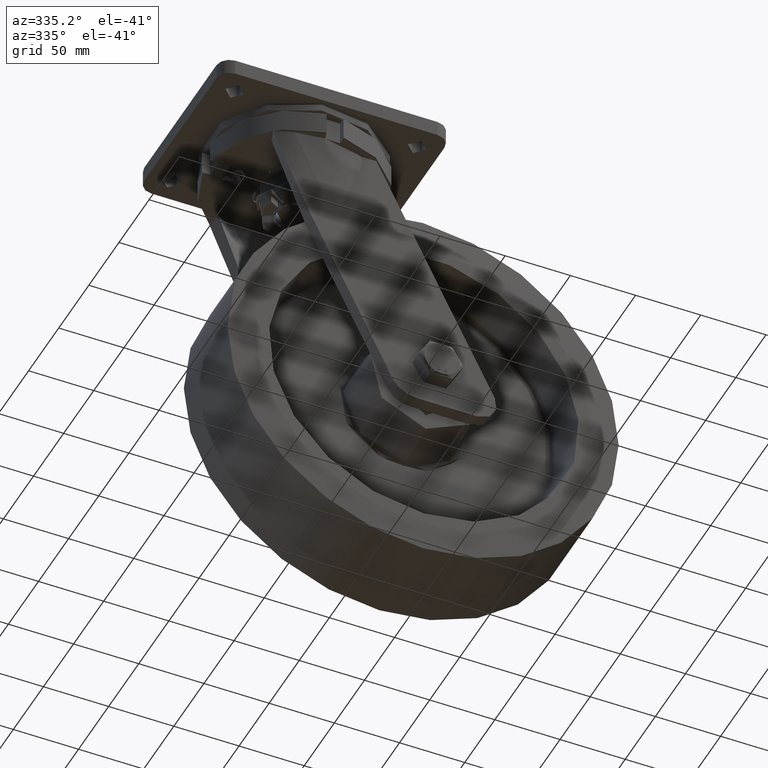
[diagram: clean part render]
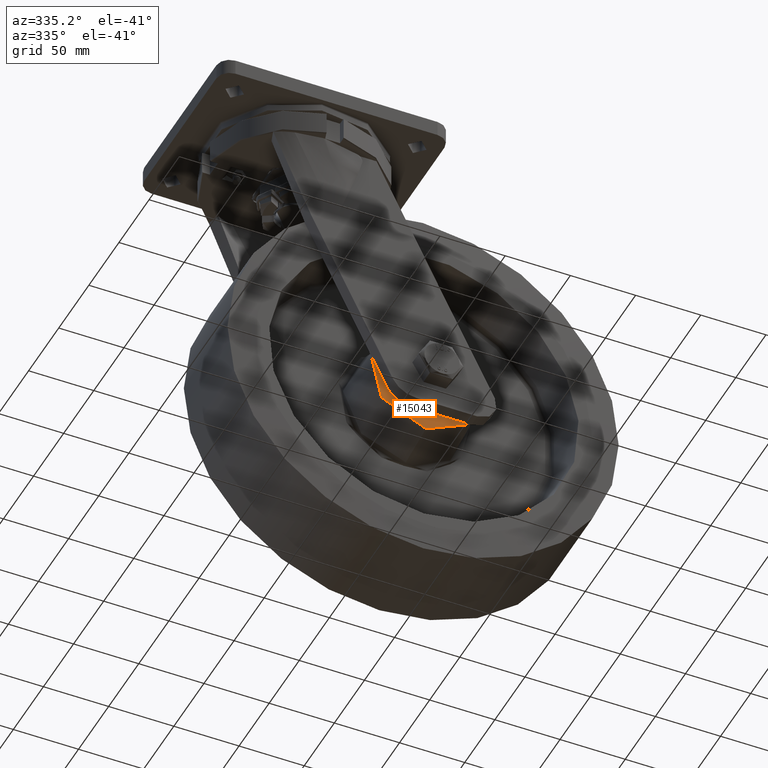
[diagram: same view with one face highlighted and labeled with its STEP entity id]
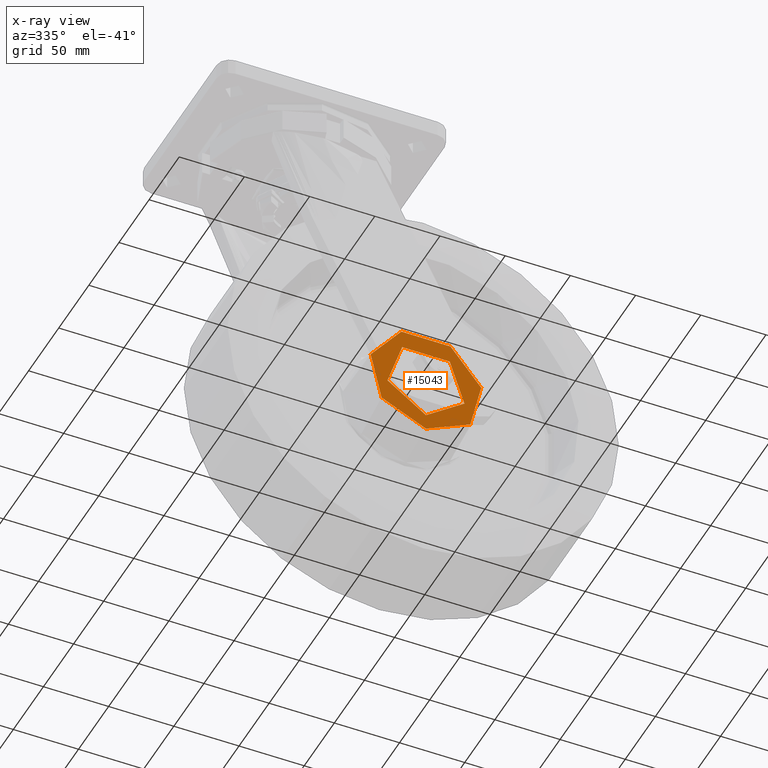
[diagram: x-ray of the same camera — body ghosted, the highlighted face saturated]
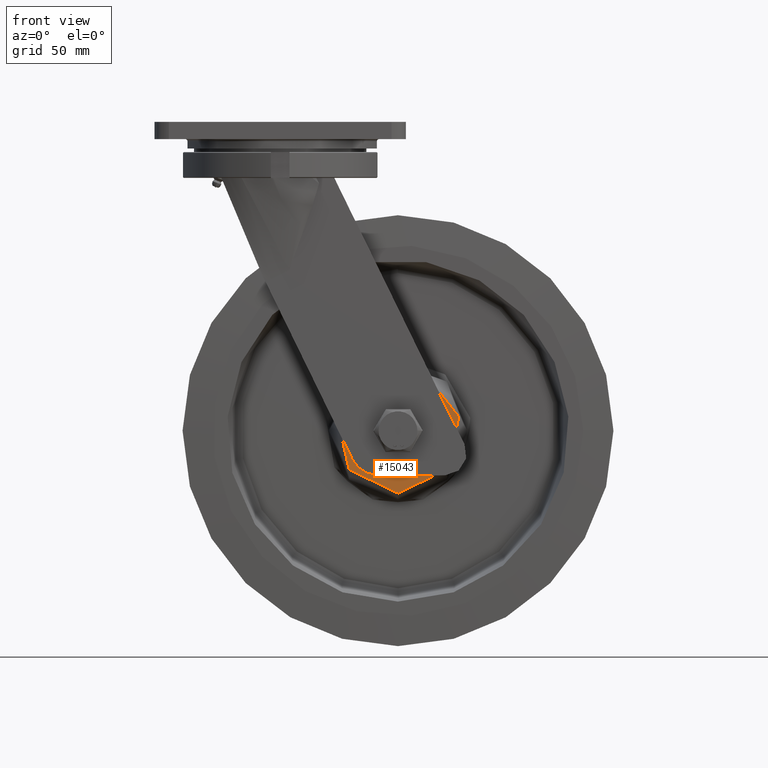
[diagram: same view with one face highlighted and labeled with its STEP entity id]
A machine part, auxiliary view. The second image highlights one B-rep face of the part: STEP entity #15043.
The next image is the same camera in x-ray: the body ghosted, the highlighted face saturated — about 0% of this face is hidden behind the body in this view.
A second angle (front view) of the same face is appended — the face is thin or edge-on in the first view.
In plain terms, the highlighted planar face has unit normal (0, -1, 0).
Its self-contained STEP definition (entity closure, byte-faithful):
#415=FACE_BOUND('',#2319,.T.);
#574=PLANE('',#16349);
#1397=FACE_OUTER_BOUND('',#2318,.T.);
#2318=EDGE_LOOP('',(#11586));
#2319=EDGE_LOOP('',(#11587));
#3166=CIRCLE('',#16322,31.);
#3169=CIRCLE('',#16326,43.5);
#6571=VERTEX_POINT('',#44123);
#6574=VERTEX_POINT('',#44131);
#8375=EDGE_CURVE('',#6571,#6571,#3166,.T.);
#8379=EDGE_CURVE('',#6574,#6574,#3169,.T.);
#11586=ORIENTED_EDGE('',*,*,#8379,.T.);
#11587=ORIENTED_EDGE('',*,*,#8375,.F.);
#15043=ADVANCED_FACE('',(#1397,#415),#574,.T.);
#16322=AXIS2_PLACEMENT_3D('',#44125,#18635,#18636);
#16326=AXIS2_PLACEMENT_3D('',#44133,#18644,#18645);
#16349=AXIS2_PLACEMENT_3D('',#44168,#18692,#18693);
#18635=DIRECTION('center_axis',(3.49148336110938E-15,-1.,0.));
#18636=DIRECTION('ref_axis',(0.,0.,1.));
#18644=DIRECTION('center_axis',(3.49148336110938E-15,-1.,0.));
#18645=DIRECTION('ref_axis',(0.,0.,1.));
#18692=DIRECTION('center_axis',(3.49148336110938E-15,-1.,0.));
#18693=DIRECTION('ref_axis',(0.,0.,1.));
#44123=CARTESIAN_POINT('',(1.46293306632035E-13,-41.,-31.));
#44125=CARTESIAN_POINT('Origin',(1.50089711709392E-13,-41.,0.));
#44131=CARTESIAN_POINT('',(1.44762498133101E-13,-41.,-43.5));
#44133=CARTESIAN_POINT('Origin',(1.50089711709392E-13,-41.,0.));
#44168=CARTESIAN_POINT('Origin',(1.50089711709392E-13,-41.,37.25));